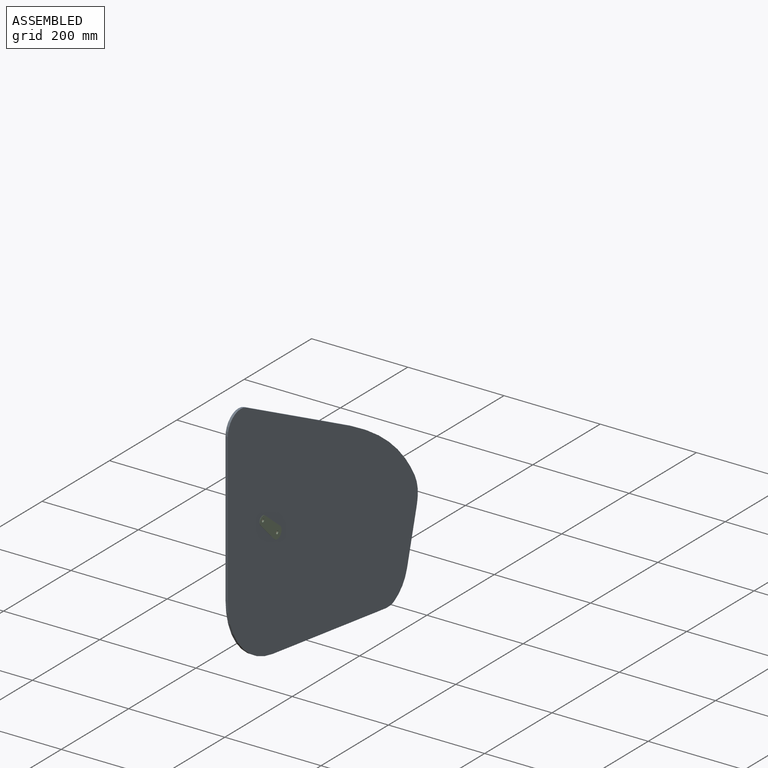
[diagram: assembled view]
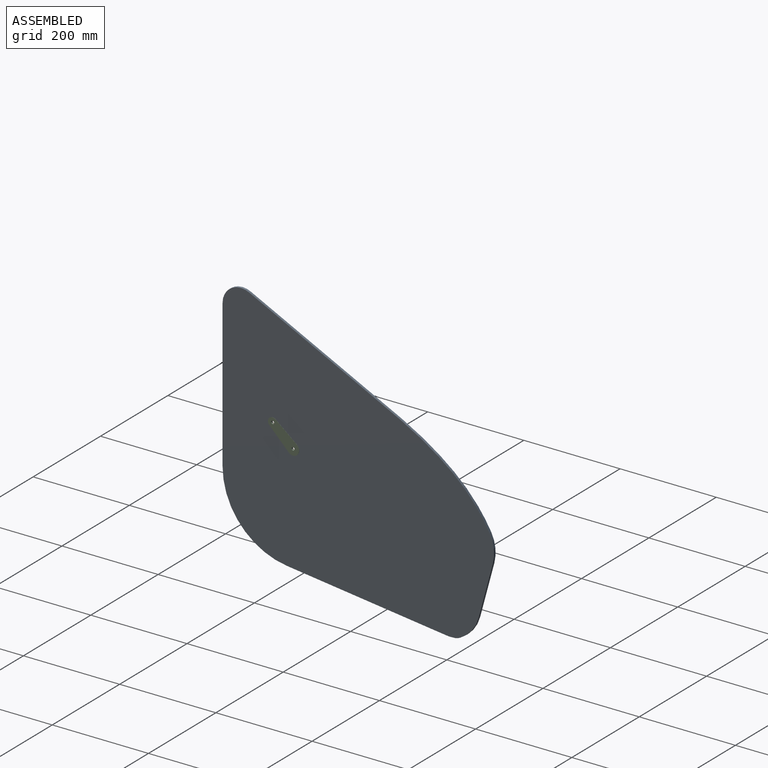
[diagram: assembled view, second angle]
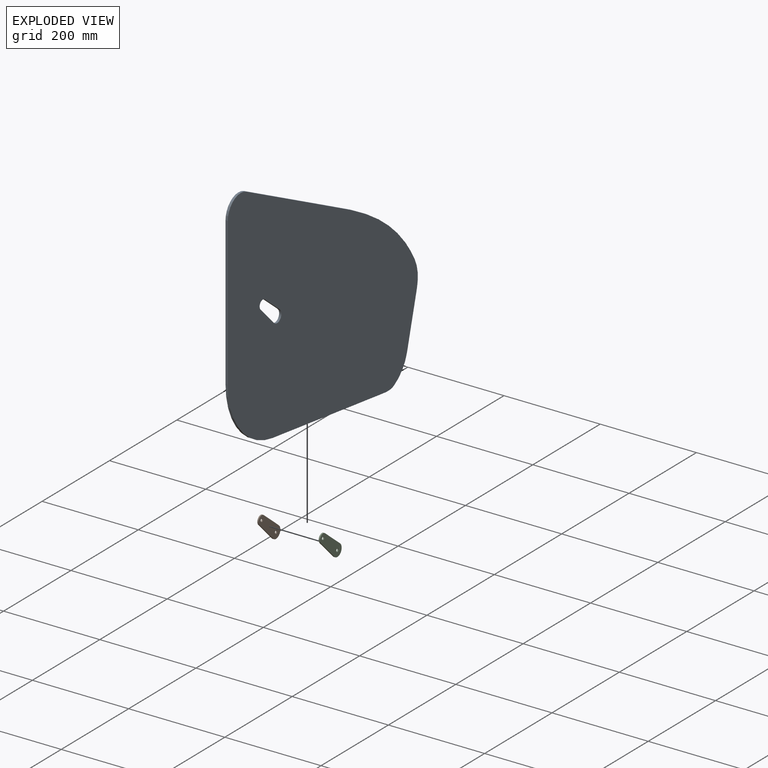
[diagram: exploded view]
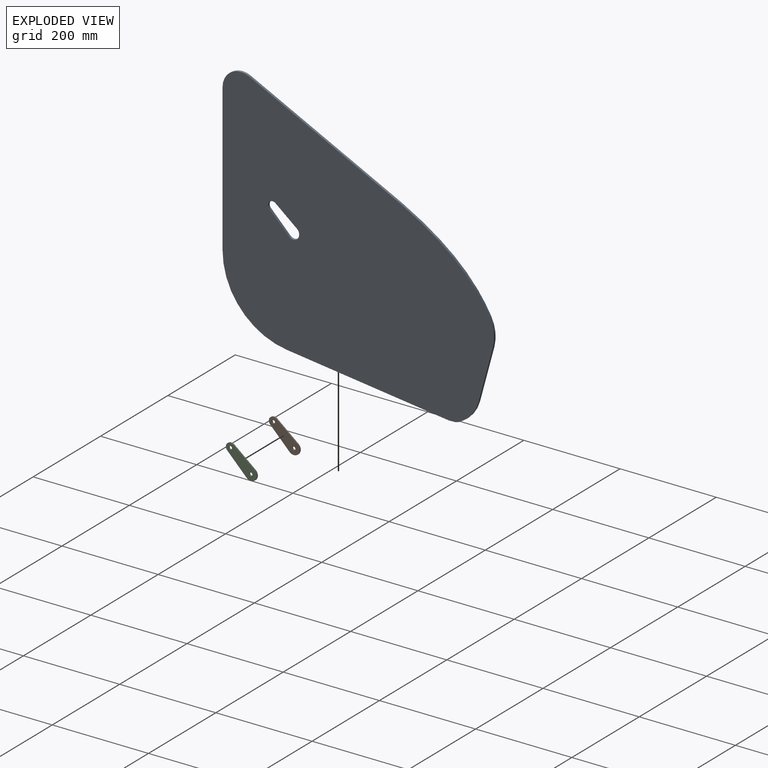
[diagram: exploded view, second angle]
ASSEMBLY  parts=3 mates=2
PART A: 15 faces, bbox 5.8x565.4x540.6 mm
  f0: extruded ~499.9x317.68mm, area 2853.1mm2, adj f1,f8,f9,f10
  f1: cylinder r=76.2mm len=56.69mm, axis (-1,0,0), area 278.8mm2, adj f0,f2,f9,f10
  f2: plane 109.41x29.52mm, normal (0,0.97,-0.26), area 539.7mm2, adj f1,f3,f9,f10
  f3: cylinder r=76.2mm len=47.65mm, axis (-1,0,0), area 299.3mm2, adj f2,f4,f9,f10
  f4: extruded ~90.9x8.64mm, area 431.9mm2, adj f3,f5,f9,f10
  f5: plane 269.81x34.16mm, normal (0,-0.13,-0.99), area 1295.2mm2, adj f4,f6,f9,f10
  f6: cylinder r=152.4mm len=151.19mm, axis (-1,0,0), area 1048.7mm2, adj f5,f7,f9,f10
  f7: plane 307.27x4.76mm, normal (0,-1,0), area 1463.3mm2, adj f6,f8,f9,f10
  f8: cylinder r=38.1mm len=54.94mm, axis (-1,0,0), area 368.1mm2, adj f0,f7,f9,f10
  f9: plane 565.4x540.62mm, normal (1,0,0), area 210406.2mm2, adj f0,f1,f2,f3,f4,f5,f6,f7
  f10: plane 564.78x540mm, normal (-1,0,0), area 210599.1mm2, adj f0,f1,f2,f3,f4,f5,f6,f7
  f11: cylinder r=12.7mm len=22.58mm, axis (1,0,0), area 196.7mm2, adj f9,f10,f12,f14
  f12: plane 40.63x40.17mm, normal (0,0.71,0.7), area 272.1mm2, adj f9,f10,f11,f13
  f13: cylinder r=9.53mm len=16.22mm, axis (1,0,0), area 137.5mm2, adj f9,f10,f12,f14
  f14: plane 44.42x35.93mm, normal (0,-0.63,-0.78), area 272.1mm2, adj f9,f10,f11,f13
PART B: 8 faces, bbox 2.5x64.7x60.6 mm
  f0: plane 44.42x35.93mm, normal (0,-0.63,0.78), area 145.1mm2, adj f1,f3,f6,f7
  f1: cylinder r=9.53mm len=16.22mm, axis (-1,0,0), area 73.3mm2, adj f0,f2,f6,f7
  f2: plane 40.63x40.17mm, normal (0,0.71,-0.7), area 145.1mm2, adj f1,f3,f6,f7
  f3: cylinder r=12.7mm len=22.58mm, axis (-1,0,0), area 104.9mm2, adj f0,f2,f6,f7
  f4: cylinder r=3.17mm len=6.35mm, axis (-1,0,0), area 50.7mm2, adj f6,f7
  f5: cylinder r=3.17mm len=6.35mm, axis (-1,0,0), area 50.7mm2, adj f6,f7
  f6: plane 64.65x60.62mm, normal (1,0,0), area 1606.2mm2, adj f0,f1,f2,f3,f4,f5
  f7: plane 64.65x60.62mm, normal (-1,0,0), area 1606.2mm2, adj f0,f1,f2,f3,f4,f5
PART C: 8 faces, bbox 2.5x64.7x60.6 mm
  f0: plane 44.42x35.93mm, normal (0,-0.63,0.78), area 145.1mm2, adj f1,f3,f6,f7
  f1: cylinder r=9.53mm len=16.22mm, axis (-1,0,0), area 73.3mm2, adj f0,f2,f6,f7
  f2: plane 40.63x40.17mm, normal (0,0.71,-0.7), area 145.1mm2, adj f1,f3,f6,f7
  f3: cylinder r=12.7mm len=22.58mm, axis (-1,0,0), area 104.9mm2, adj f0,f2,f6,f7
  f4: cylinder r=3.17mm len=6.35mm, axis (-1,0,0), area 50.7mm2, adj f6,f7
  f5: cylinder r=3.17mm len=6.35mm, axis (-1,0,0), area 50.7mm2, adj f6,f7
  f6: plane 64.65x60.62mm, normal (1,0,0), area 1606.2mm2, adj f0,f1,f2,f3,f4,f5
  f7: plane 64.65x60.62mm, normal (-1,0,0), area 1606.2mm2, adj f0,f1,f2,f3,f4,f5
PLACE A at identity
PLACE B rot(axis=(0,0,1),180deg) t=(0.32,0,0)mm
PLACE C rot(axis=(0,0,1),180deg) t=(0.32,0,0)mm
MATE fastened B.f0 <-> A.f14  axis (0,0.63,0.78) through (-463.55,-174.86,829.66)mm
MATE fastened B.f1 <-> C.f1  axis (1,0,0) through (-461.01,-203.06,840.22)mm
